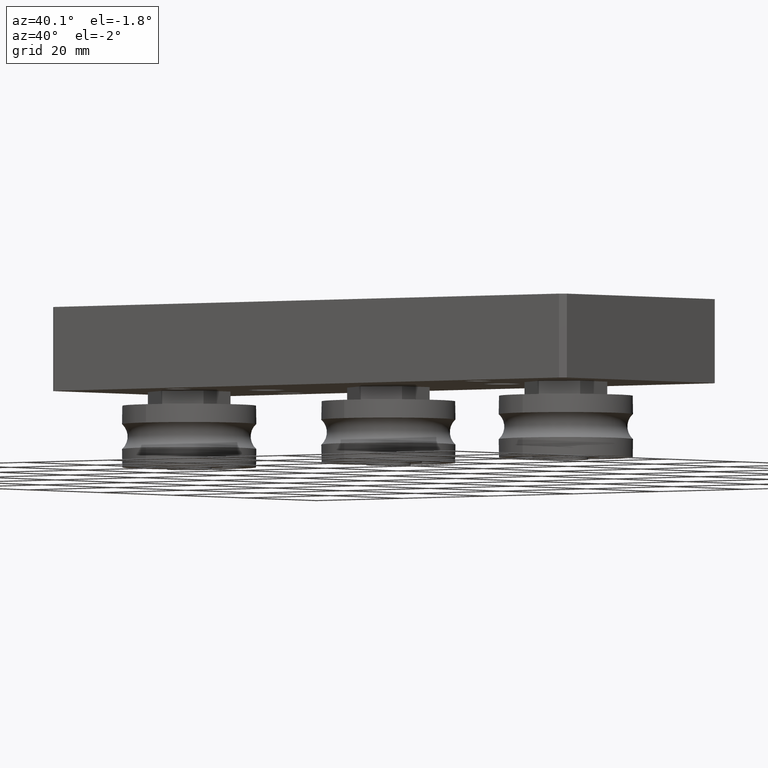
[diagram: clean part render]
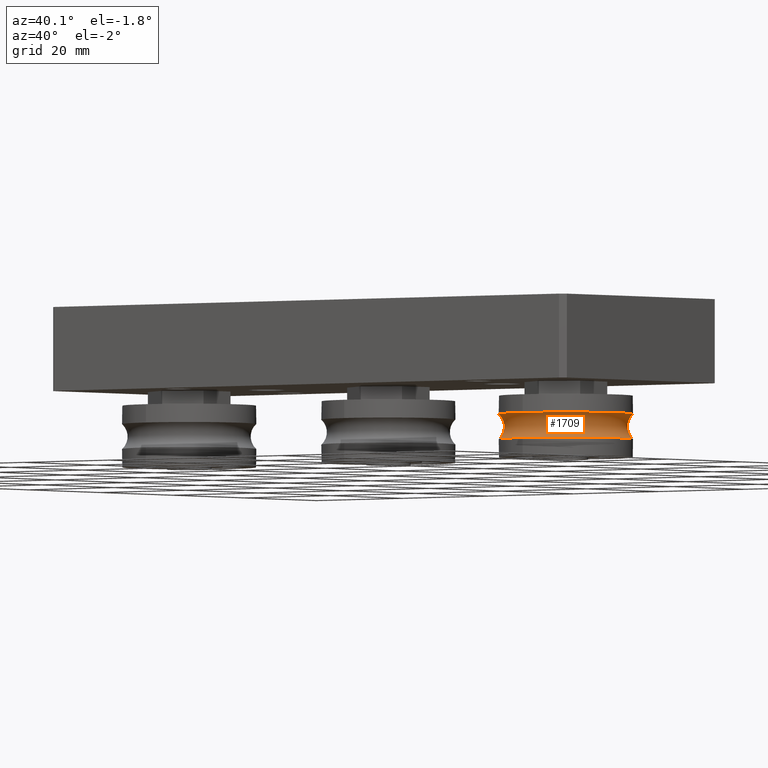
[diagram: same view with one face highlighted and labeled with its STEP entity id]
A machine part, auxiliary view. The second image highlights one B-rep face of the part: STEP entity #1709.
In plain terms, the highlighted toroidal blend (fillet) surface has major radius 14 mm and minor (blend) radius 3 mm.
Its self-contained STEP definition (entity closure, byte-faithful):
#77=TOROIDAL_SURFACE('',#2117,14.,3.);
#278=CIRCLE('',#2115,12.);
#279=CIRCLE('',#2116,12.);
#280=CIRCLE('',#2118,3.);
#281=CIRCLE('',#2119,12.);
#282=CIRCLE('',#2120,12.);
#385=FACE_OUTER_BOUND('',#531,.T.);
#531=EDGE_LOOP('',(#1528,#1529,#1530,#1531,#1532,#1533));
#908=VERTEX_POINT('',#3151);
#909=VERTEX_POINT('',#3152);
#910=VERTEX_POINT('',#3157);
#911=VERTEX_POINT('',#3159);
#1115=EDGE_CURVE('',#908,#909,#278,.T.);
#1117=EDGE_CURVE('',#909,#908,#279,.T.);
#1118=EDGE_CURVE('',#909,#910,#280,.T.);
#1119=EDGE_CURVE('',#911,#910,#281,.T.);
#1120=EDGE_CURVE('',#910,#911,#282,.T.);
#1528=ORIENTED_EDGE('',*,*,#1115,.T.);
#1529=ORIENTED_EDGE('',*,*,#1118,.T.);
#1530=ORIENTED_EDGE('',*,*,#1119,.F.);
#1531=ORIENTED_EDGE('',*,*,#1120,.F.);
#1532=ORIENTED_EDGE('',*,*,#1118,.F.);
#1533=ORIENTED_EDGE('',*,*,#1117,.T.);
#1709=ADVANCED_FACE('',(#385),#77,.F.);
#2115=AXIS2_PLACEMENT_3D('',#3153,#2631,#2632);
#2116=AXIS2_PLACEMENT_3D('',#3155,#2634,#2635);
#2117=AXIS2_PLACEMENT_3D('',#3156,#2636,#2637);
#2118=AXIS2_PLACEMENT_3D('',#3158,#2638,#2639);
#2119=AXIS2_PLACEMENT_3D('',#3160,#2640,#2641);
#2120=AXIS2_PLACEMENT_3D('',#3161,#2642,#2643);
#2631=DIRECTION('center_axis',(1.,0.,0.));
#2632=DIRECTION('ref_axis',(0.,1.,0.));
#2634=DIRECTION('center_axis',(1.,0.,0.));
#2635=DIRECTION('ref_axis',(0.,1.,0.));
#2636=DIRECTION('center_axis',(1.,0.,0.));
#2637=DIRECTION('ref_axis',(0.,0.,-1.));
#2638=DIRECTION('center_axis',(0.,-1.,-1.22464679914735E-16));
#2639=DIRECTION('ref_axis',(0.,-1.22464679914735E-16,1.));
#2640=DIRECTION('center_axis',(1.,0.,0.));
#2641=DIRECTION('ref_axis',(0.,1.,0.));
#2642=DIRECTION('center_axis',(1.,0.,0.));
#2643=DIRECTION('ref_axis',(0.,1.,0.));
#3151=CARTESIAN_POINT('',(-2.23606797749979,-12.,-1.46957615897682E-15));
#3152=CARTESIAN_POINT('',(-2.23606797749979,-1.46957615897682E-15,12.));
#3153=CARTESIAN_POINT('Origin',(-2.23606797749979,0.,0.));
#3155=CARTESIAN_POINT('Origin',(-2.23606797749979,0.,0.));
#3156=CARTESIAN_POINT('Origin',(0.,0.,0.));
#3157=CARTESIAN_POINT('',(2.23606797749979,-1.46957615897682E-15,12.));
#3158=CARTESIAN_POINT('Origin',(0.,-1.71450551880629E-15,14.));
#3159=CARTESIAN_POINT('',(2.23606797749979,-12.,-1.46957615897682E-15));
#3160=CARTESIAN_POINT('Origin',(2.23606797749979,0.,0.));
#3161=CARTESIAN_POINT('Origin',(2.23606797749979,0.,0.));